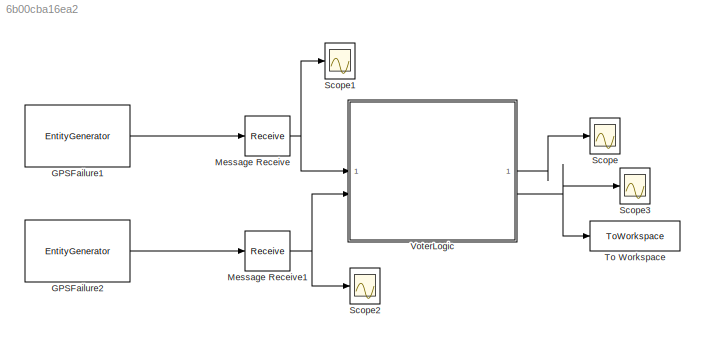
MODEL slx_6b00cba16ea2
KIND model
CONFIG AbsTol = auto
CONFIG EnableMultiTasking = off
CONFIG FixedStep = auto
CONFIG MaxStep = auto
CONFIG MinStep = auto
CONFIG RelTol = 1e-3
CONFIG SampleTimeConstraint = Unconstrained
CONFIG SolverName = VariableStepAuto
CONFIG StartTime = 0.0
CONFIG StopTime = 10
BLOCK [EntityGenerator] GPSFailure1
  AttributeName = entity
  DataInitialValue = 1
  EntityTypeName = GPS1FailureGenerator
  GenerateAction = entity=0;
  GenerateEntityAtSimulationStart = off
  IntergenerationTimeAction = dt = -14.1*log(1-rand());
  OutputPortMap = o3
  OutputPortMessageModes = m
  TimeSource = MATLAB action
BLOCK [EntityGenerator] GPSFailure2
  AttributeName = entity
  DataInitialValue = 1
  EntityTypeName = GPS1FailureGenerator
  GenerateAction = entity=0;
  GenerateEntityAtSimulationStart = off
  IntergenerationTimeAction = dt = -14.1*log(1-rand());
  OutputPortMap = o3
  OutputPortMessageModes = m
  TimeSource = MATLAB action
BLOCK [Receive] Message Receive
  InitialValue = [1]
  InputPortMap = u0
  InputPortMessageModes = m
  OutputPortMap = o1
  QueueLength = 1
BLOCK [Receive] Message Receive1
  InitialValue = [1]
  InputPortMap = u0
  InputPortMessageModes = m
  OutputPortMap = o1
  QueueLength = 1
BLOCK [Scope] Scope
  Floating = off
  NumInputPorts = 1
  ScopeSpecificationString = Simulink.scopes.TimeScopeBlockCfg('CurrentConfiguration', extmgr.ConfigurationSet(extmgr.Configuration('Core','General UI',true),extmgr.Configuration('Core','Source UI',true),extmgr.Configuration('Sources','WiredSimulink',true),extmgr.Configuration('Visuals','Time Domain',true,'SerializedDisplays',{struct('MinYLimReal','-0.125','MaxYLimReal','1.125','YLabelReal','','MinYLimMag','0.00000','MaxYLimM...<+1384ch>
BLOCK [Scope] Scope1
  Floating = off
  NumInputPorts = 1
  ScopeSpecificationString = Simulink.scopes.TimeScopeBlockCfg('CurrentConfiguration', extmgr.ConfigurationSet(extmgr.Configuration('Core','General UI',true),extmgr.Configuration('Core','Source UI',true),extmgr.Configuration('Sources','WiredSimulink',true,'DataLoggingVariableName','ScopeData1'),extmgr.Configuration('Visuals','Time Domain',true,'SerializedDisplays',{struct('MinYLimReal','-0.125','MaxYLimReal','1.125','YLabelRe...<+1415ch>
BLOCK [Scope] Scope2
  Floating = off
  NumInputPorts = 1
  ScopeSpecificationString = Simulink.scopes.TimeScopeBlockCfg('CurrentConfiguration', extmgr.ConfigurationSet(extmgr.Configuration('Core','General UI',true),extmgr.Configuration('Core','Source UI',true),extmgr.Configuration('Sources','WiredSimulink',true,'DataLoggingVariableName','ScopeData2'),extmgr.Configuration('Visuals','Time Domain',true,'SerializedDisplays',{struct('MinYLimReal','-0.125','MaxYLimReal','1.125','YLabelRe...<+1420ch>
BLOCK [Scope] Scope3
  Floating = off
  NumInputPorts = 1
  ScopeSpecificationString = Simulink.scopes.TimeScopeBlockCfg('CurrentConfiguration', extmgr.ConfigurationSet(extmgr.Configuration('Core','General UI',true),extmgr.Configuration('Core','Source UI',true),extmgr.Configuration('Sources','WiredSimulink',true,'DataLoggingVariableName','ScopeData1'),extmgr.Configuration('Visuals','Time Domain',true,'SerializedDisplays',{struct('MinYLimReal','-2.97141','MaxYLimReal','26.7427','YLab...<+1430ch>
BLOCK [ToWorkspace] To Workspace
  FixptAsFi = on
  MaxDataPoints = inf
  SampleTime = -1
  SaveFormat = Timeseries
  VariableName = op_time
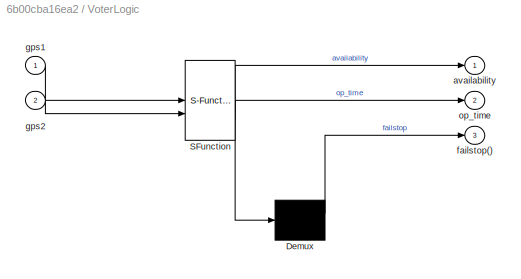
BLOCK [SubSystem] VoterLogic
  ErrorFcn = Stateflow.Translate.translate
  PermitHierarchicalResolution = ExplicitOnly
  PortSchema = {"entries":[{"content":{"sides":[{"content":{"connectorIds":["In1","In2"]},"type":"ConnectorPlacement.EquallySpacedRectSide","uuid":"ade0a091-17ce-42a4-aa78-d0bfb30748c5"},{"content":{"connectorIds":["Out1","Out3","Out2"],"side":"RIGHT"},"type":"ConnectorPlacement.EquallySpacedRectSide","uuid":"66555fcb-1f83-4e30-8ef8-6a8313a50ee1"},{"content":{"side":"TOP"},"type":"ConnectorPlacement.EquallySpace...<+242ch>
  SFBlockType = Chart
  TreatAsAtomicUnit = on
BLOCK [Demux] VoterLogic/ Demux 
  Outputs = 1
BLOCK [S-Function] VoterLogic/ SFunction 
  EnableBusSupport = on
  FunctionName = sf_sfun
  PortCounts = [2 3]
  SFcnIsStateOwnerBlock = off
  SFunctionDeploymentMode = off
  Tag = Stateflow S-Function 3
BLOCK [Outport] VoterLogic/availability
BLOCK [Outport] VoterLogic/failstop()
  Port = 3
BLOCK [Inport] VoterLogic/gps1
BLOCK [Inport] VoterLogic/gps2
  Port = 2
BLOCK [Outport] VoterLogic/op_time
  Port = 2
LINE GPSFailure1:1 -> Message Receive:1
LINE GPSFailure2:1 -> Message Receive1:1
NET Message Receive1:1 -> Scope2:1, VoterLogic:2
NET Message Receive:1 -> Scope1:1, VoterLogic:1
LINE VoterLogic:1 -> Scope:1
NET VoterLogic:2 -> Scope3:1, To Workspace:1
note: NET lines group one-source signal fan-out (src -> all destinations, sorted); 1:1 wires keep LINE
CHART VoterLogic states=2 transitions=2
  STATE_LABEL 'Operation\nexit:\nop_time=temporalCount(sec)'
  STATE_LABEL 'Failstop\n'
CHART  states=0 transitions=0
